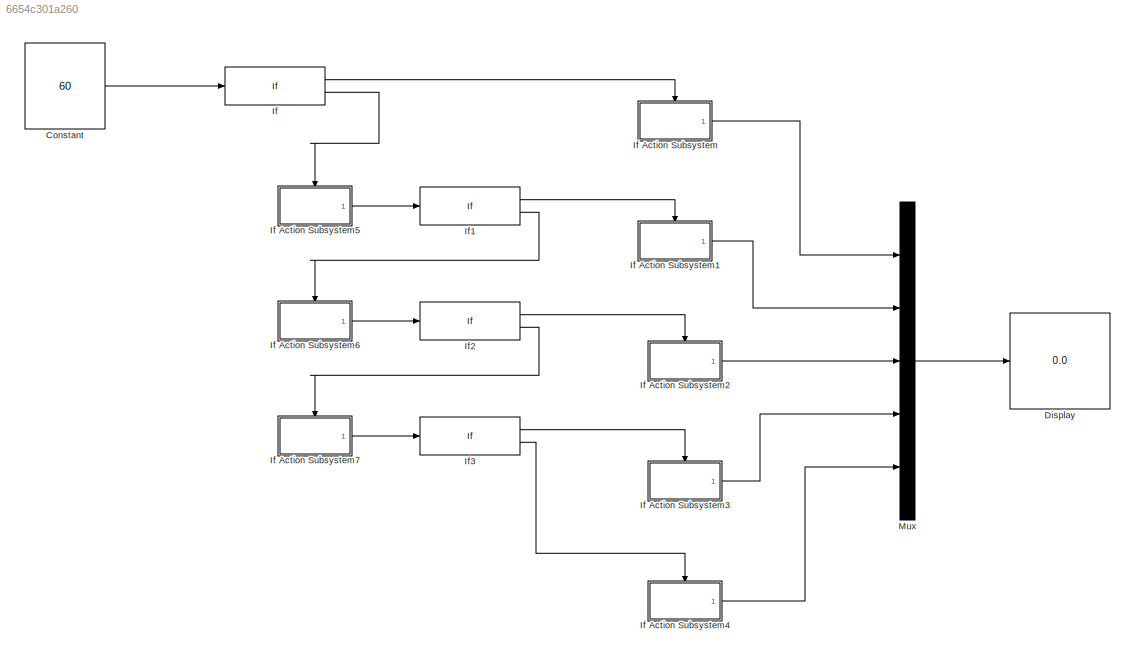
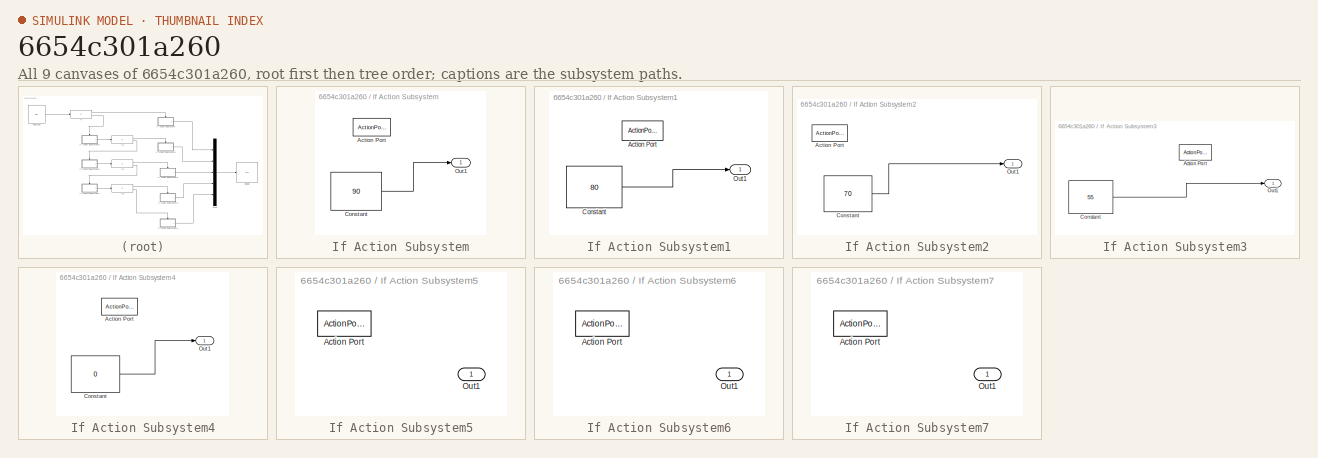
[diagram: thumbnail index - all 9 canvases of the model, root first then tree order]
MODEL slx_6654c301a260
KIND model
CONFIG AbsTol = auto
CONFIG EnableMultiTasking = off
CONFIG FixedStep = auto
CONFIG MaxStep = auto
CONFIG MinStep = auto
CONFIG RelTol = 1e-3
CONFIG SampleTimeConstraint = Unconstrained
CONFIG Solver = FixedStepDiscrete
CONFIG SolverName = FixedStepDiscrete
CONFIG StartTime = 0.0
CONFIG StopTime = 10.0
BLOCK [Constant] Constant
  Value = 60
BLOCK [Display] Display
  Decimation = 1
  Ports = [1]
BLOCK [If] If
  IfExpression = u1 > 85
  Ports = [1, 2]
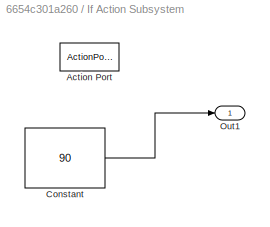
BLOCK [SubSystem] If Action Subsystem
  Ports = [0, 1, 0, 0, 0, 0, 0, 1]
  RequestExecContextInheritance = off
  TreatAsAtomicUnit = on
BLOCK [ActionPort] If Action Subsystem/Action Port
  ActionPortLabel = if(u1 > 85)
BLOCK [Constant] If Action Subsystem/Constant
  Value = 90
BLOCK [Outport] If Action Subsystem/Out1
  IconDisplay = Port number
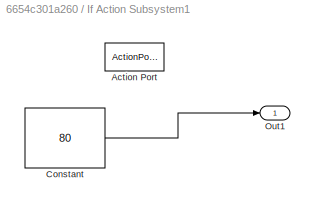
BLOCK [SubSystem] If Action Subsystem1
  Ports = [0, 1, 0, 0, 0, 0, 0, 1]
  RequestExecContextInheritance = off
  TreatAsAtomicUnit = on
BLOCK [ActionPort] If Action Subsystem1/Action Port
  ActionPortLabel = if(u1 > 75)
BLOCK [Constant] If Action Subsystem1/Constant
  Value = 80
BLOCK [Outport] If Action Subsystem1/Out1
  IconDisplay = Port number
BLOCK [SubSystem] If Action Subsystem2
  Ports = [0, 1, 0, 0, 0, 0, 0, 1]
  RequestExecContextInheritance = off
  TreatAsAtomicUnit = on
BLOCK [ActionPort] If Action Subsystem2/Action Port
  ActionPortLabel = if(u1 > 65)
BLOCK [Constant] If Action Subsystem2/Constant
  Value = 70
BLOCK [Outport] If Action Subsystem2/Out1
  IconDisplay = Port number
BLOCK [SubSystem] If Action Subsystem3
  Ports = [0, 1, 0, 0, 0, 0, 0, 1]
  RequestExecContextInheritance = off
  TreatAsAtomicUnit = on
BLOCK [ActionPort] If Action Subsystem3/Action Port
  ActionPortLabel = if(u1 > 50)
BLOCK [Constant] If Action Subsystem3/Constant
  Value = 55
BLOCK [Outport] If Action Subsystem3/Out1
  IconDisplay = Port number
BLOCK [SubSystem] If Action Subsystem4
  Ports = [0, 1, 0, 0, 0, 0, 0, 1]
  RequestExecContextInheritance = off
  TreatAsAtomicUnit = on
BLOCK [ActionPort] If Action Subsystem4/Action Port
  ActionPortLabel = else
BLOCK [Constant] If Action Subsystem4/Constant
  Value = 0
BLOCK [Outport] If Action Subsystem4/Out1
  IconDisplay = Port number
BLOCK [SubSystem] If Action Subsystem5
  Ports = [0, 1, 0, 0, 0, 0, 0, 1]
  RequestExecContextInheritance = off
  TreatAsAtomicUnit = on
BLOCK [ActionPort] If Action Subsystem5/Action Port
  ActionPortLabel = else
BLOCK [Outport] If Action Subsystem5/Out1
  IconDisplay = Port number
BLOCK [SubSystem] If Action Subsystem6
  Ports = [0, 1, 0, 0, 0, 0, 0, 1]
  RequestExecContextInheritance = off
  TreatAsAtomicUnit = on
BLOCK [ActionPort] If Action Subsystem6/Action Port
  ActionPortLabel = else
BLOCK [Outport] If Action Subsystem6/Out1
  IconDisplay = Port number
BLOCK [SubSystem] If Action Subsystem7
  Ports = [0, 1, 0, 0, 0, 0, 0, 1]
  RequestExecContextInheritance = off
  TreatAsAtomicUnit = on
BLOCK [ActionPort] If Action Subsystem7/Action Port
  ActionPortLabel = else
BLOCK [Outport] If Action Subsystem7/Out1
  IconDisplay = Port number
BLOCK [If] If1
  IfExpression = u1 > 75
  Ports = [1, 2]
BLOCK [If] If2
  IfExpression = u1 > 65
  Ports = [1, 2]
BLOCK [If] If3
  IfExpression = u1 > 50
  Ports = [1, 2]
BLOCK [Mux] Mux
  DisplayOption = bar
  Inputs = 5
  Ports = [5, 1]
LINE Constant:1 -> If:1
LINE If Action Subsystem/Constant:1 -> If Action Subsystem/Out1:1
LINE If Action Subsystem1/Constant:1 -> If Action Subsystem1/Out1:1
LINE If Action Subsystem1:1 -> Mux:2
LINE If Action Subsystem2/Constant:1 -> If Action Subsystem2/Out1:1
LINE If Action Subsystem2:1 -> Mux:3
LINE If Action Subsystem3/Constant:1 -> If Action Subsystem3/Out1:1
LINE If Action Subsystem3:1 -> Mux:4
LINE If Action Subsystem4/Constant:1 -> If Action Subsystem4/Out1:1
LINE If Action Subsystem4:1 -> Mux:5
LINE If Action Subsystem5:1 -> If1:1
LINE If Action Subsystem6:1 -> If2:1
LINE If Action Subsystem7:1 -> If3:1
LINE If Action Subsystem:1 -> Mux:1
LINE If1:1 -> If Action Subsystem1:ifaction
LINE If1:2 -> If Action Subsystem6:ifaction
LINE If2:1 -> If Action Subsystem2:ifaction
LINE If2:2 -> If Action Subsystem7:ifaction
LINE If3:1 -> If Action Subsystem3:ifaction
LINE If3:2 -> If Action Subsystem4:ifaction
LINE If:1 -> If Action Subsystem:ifaction
LINE If:2 -> If Action Subsystem5:ifaction
LINE Mux:1 -> Display:1
